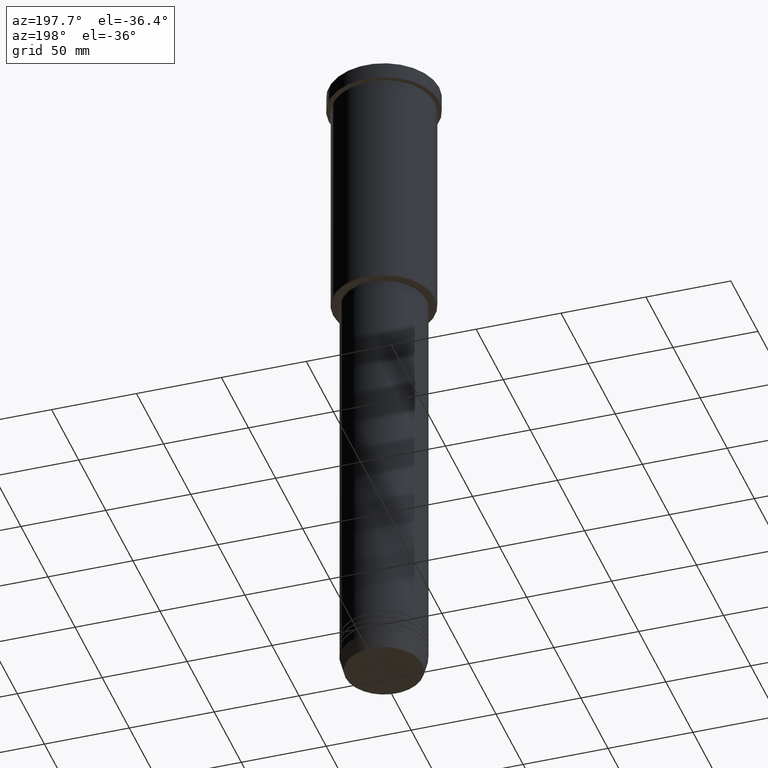
[diagram: clean part render]
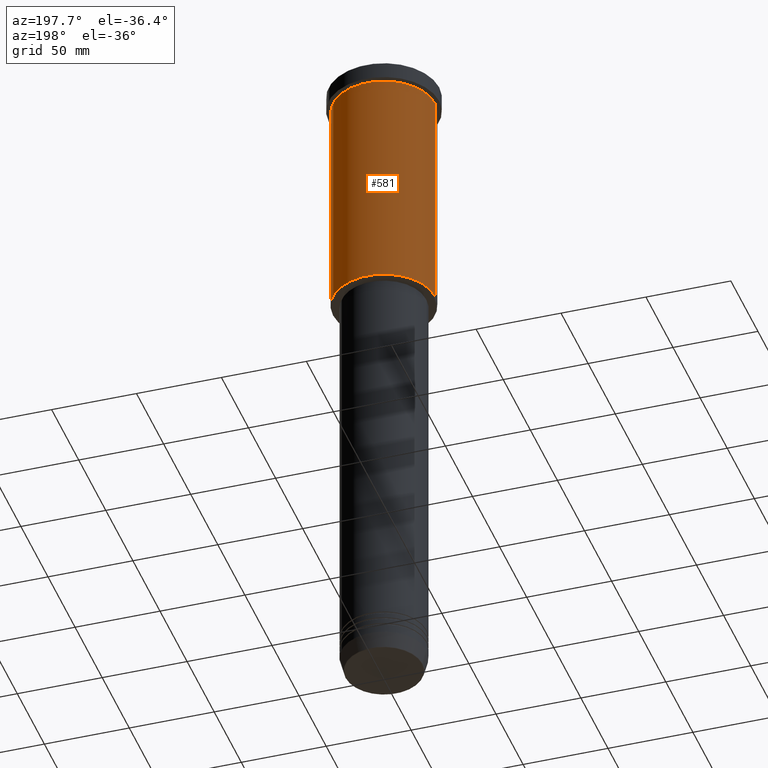
[diagram: same view with one face highlighted and labeled with its STEP entity id]
A machine part, auxiliary view. The second image highlights one B-rep face of the part: STEP entity #581.
In plain terms, the highlighted cylindrical surface (partial cylindrical patch) has radius 30 mm, axis along (-0, -0, 1).
Its self-contained STEP definition (entity closure, byte-faithful):
#25 = CARTESIAN_POINT ( 'NONE',  ( 0.000000000000000000, 0.000000000000000000, -145.5000000000000000 ) ) ;
#48 = EDGE_LOOP ( 'NONE', ( #873, #757, #432, #1151 ) ) ;
#89 = AXIS2_PLACEMENT_3D ( 'NONE', #372, #181, #573 ) ;
#95 = DIRECTION ( 'NONE',  ( -0.000000000000000000, -0.000000000000000000, 1.000000000000000000 ) ) ;
#131 = DIRECTION ( 'NONE',  ( -1.000000000000000000, 0.000000000000000000, 0.000000000000000000 ) ) ;
#138 = CARTESIAN_POINT ( 'NONE',  ( 30.00000000000000000, 0.000000000000000000, 0.000000000000000000 ) ) ;
#181 = DIRECTION ( 'NONE',  ( -0.000000000000000000, -0.000000000000000000, 1.000000000000000000 ) ) ;
#202 = CARTESIAN_POINT ( 'NONE',  ( 0.000000000000000000, 0.000000000000000000, 0.000000000000000000 ) ) ;
#223 = CIRCLE ( 'NONE', #1045, 30.00000000000000000 ) ;
#231 = CARTESIAN_POINT ( 'NONE',  ( 30.00000000000000000, 0.000000000000000000, -145.5000000000000000 ) ) ;
#253 = EDGE_CURVE ( 'NONE', #657, #618, #1152, .T. ) ;
#272 = FACE_OUTER_BOUND ( 'NONE', #48, .T. ) ;
#285 = CARTESIAN_POINT ( 'NONE',  ( 30.00000000000000000, 0.000000000000000000, -10.99999999999999289 ) ) ;
#345 = CARTESIAN_POINT ( 'NONE',  ( -30.00000000000000000, 3.673940397442059178E-15, 0.000000000000000000 ) ) ;
#372 = CARTESIAN_POINT ( 'NONE',  ( 0.000000000000000000, 0.000000000000000000, -10.99999999999999289 ) ) ;
#432 = ORIENTED_EDGE ( 'NONE', *, *, #504, .F. ) ;
#494 = DIRECTION ( 'NONE',  ( -0.000000000000000000, -0.000000000000000000, 1.000000000000000000 ) ) ;
#504 = EDGE_CURVE ( 'NONE', #541, #618, #1120, .T. ) ;
#541 = VERTEX_POINT ( 'NONE', #285 ) ;
#573 = DIRECTION ( 'NONE',  ( 1.000000000000000000, 0.000000000000000000, 0.000000000000000000 ) ) ;
#580 = LINE ( 'NONE', #138, #597 ) ;
#581 = ADVANCED_FACE ( 'NONE', ( #272 ), #1019, .T. ) ;
#597 = VECTOR ( 'NONE', #865, 1000.000000000000000 ) ;
#618 = VERTEX_POINT ( 'NONE', #921 ) ;
#631 = EDGE_CURVE ( 'NONE', #1013, #657, #223, .T. ) ;
#657 = VERTEX_POINT ( 'NONE', #938 ) ;
#757 = ORIENTED_EDGE ( 'NONE', *, *, #253, .T. ) ;
#794 = DIRECTION ( 'NONE',  ( -0.000000000000000000, -0.000000000000000000, 1.000000000000000000 ) ) ;
#834 = EDGE_CURVE ( 'NONE', #1013, #541, #580, .T. ) ;
#865 = DIRECTION ( 'NONE',  ( -0.000000000000000000, -0.000000000000000000, 1.000000000000000000 ) ) ;
#873 = ORIENTED_EDGE ( 'NONE', *, *, #631, .T. ) ;
#906 = DIRECTION ( 'NONE',  ( 1.000000000000000000, 0.000000000000000000, 0.000000000000000000 ) ) ;
#921 = CARTESIAN_POINT ( 'NONE',  ( -30.00000000000000000, 3.673940397442059178E-15, -10.99999999999999289 ) ) ;
#938 = CARTESIAN_POINT ( 'NONE',  ( -30.00000000000000000, 3.673940397442059178E-15, -145.5000000000000000 ) ) ;
#992 = AXIS2_PLACEMENT_3D ( 'NONE', #202, #95, #906 ) ;
#1013 = VERTEX_POINT ( 'NONE', #231 ) ;
#1019 = CYLINDRICAL_SURFACE ( 'NONE', #992, 30.00000000000000000 ) ;
#1043 = VECTOR ( 'NONE', #794, 1000.000000000000000 ) ;
#1045 = AXIS2_PLACEMENT_3D ( 'NONE', #25, #494, #131 ) ;
#1120 = CIRCLE ( 'NONE', #89, 30.00000000000000000 ) ;
#1151 = ORIENTED_EDGE ( 'NONE', *, *, #834, .F. ) ;
#1152 = LINE ( 'NONE', #345, #1043 ) ;